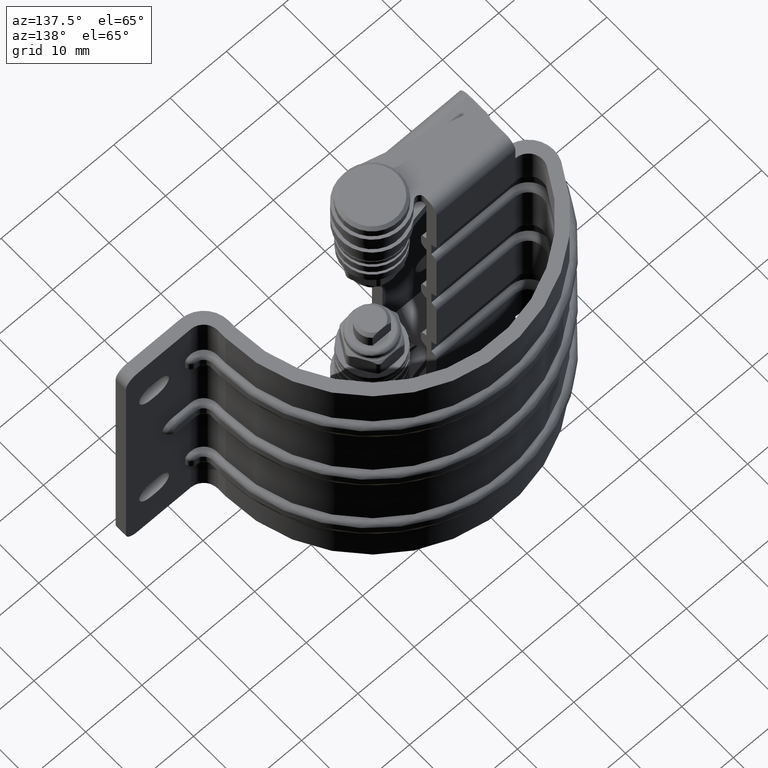
[diagram: clean part render]
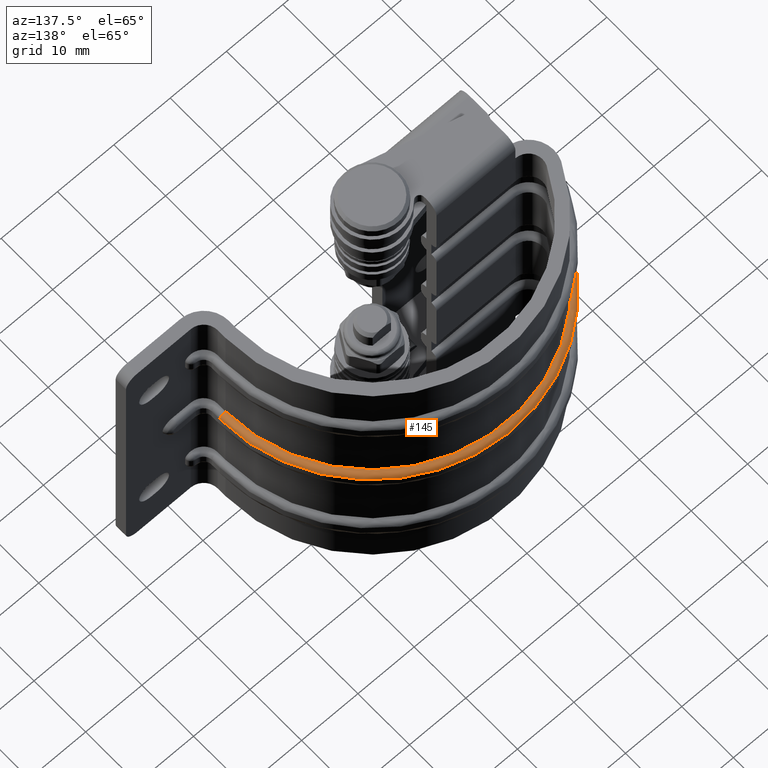
[diagram: same view with one face highlighted and labeled with its STEP entity id]
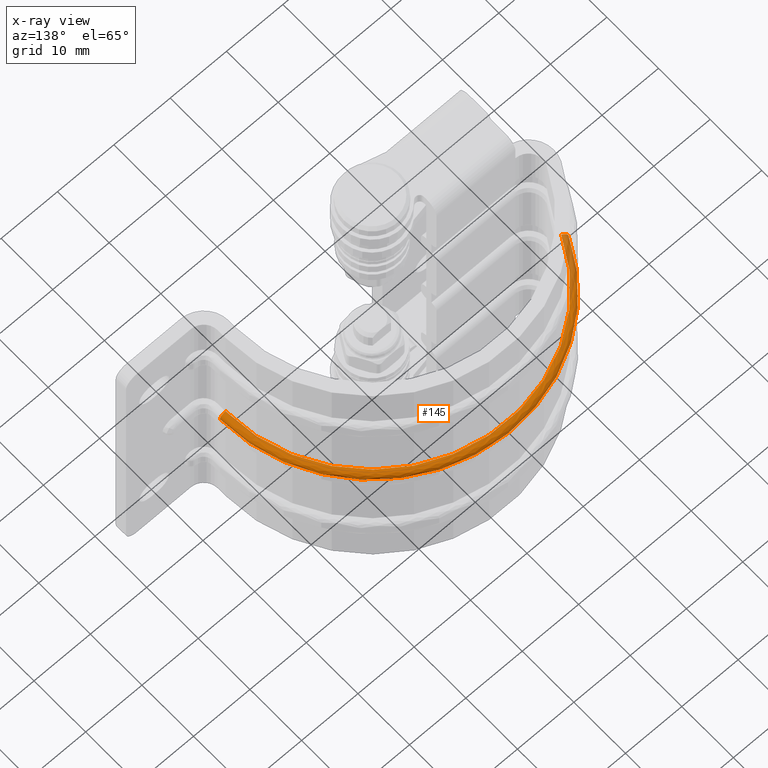
[diagram: x-ray of the same camera — body ghosted, the highlighted face saturated]
A machine part, auxiliary view. The second image highlights one B-rep face of the part: STEP entity #145.
The next image is the same camera in x-ray: the body ghosted, the highlighted face saturated — about 8% of this face is hidden behind the body in this view.
In plain terms, the highlighted face is a freeform B-spline surface patch.
Its self-contained STEP definition (entity closure, byte-faithful):
#145=ADVANCED_FACE('',(#869),#868,.T.);
#868=( BOUNDED_SURFACE() B_SPLINE_SURFACE( 2,2,((#5303,#5304,#5305,#5306,#5307),(#5308,#5309,#5310,#5311,#5312),(#5313,#5314,#5315,#5316,#5317),(#5318,#5319,#5320,#5321,#5322),(#5323,#5324,#5325,#5326,#5327),(#5328,#5329,#5330,#5331,#5332),(#5333,#5334,#5335,#5336,#5337)), .UNSPECIFIED.,.T.,.F.,.F.) B_SPLINE_SURFACE_WITH_KNOTS((3,2,2,3),(3,2,3),(0.00000000000E+00,3.33333333333E-01,6.66666666667E-01,1.00000000000E+00),(0.00000000000E+00,5.00000000000E-01,1.00000000000E+00), .UNSPECIFIED. ) GEOMETRIC_REPRESENTATION_ITEM() RATIONAL_B_SPLINE_SURFACE(((1.00000000000E+00,7.07106781187E-01,1.00000000000E+00,7.07106781187E-01,1.00000000000E+00),(5.00000000000E-01,3.53553390593E-01,5.00000000000E-01,3.53553390593E-01,5.00000000000E-01),(1.00000000000E+00,7.07106781187E-01,1.00000000000E+00,7.07106781187E-01,1.00000000000E+00),(5.00000000000E-01,3.53553390593E-01,5.00000000000E-01,3.53553390593E-01,5.00000000000E-01),(1.00000000000E+00,7.07106781187E-01,1.00000000000E+00,7.07106781187E-01,1.00000000000E+00),(5.00000000000E-01,3.53553390593E-01,5.00000000000E-01,3.53553390593E-01,5.00000000000E-01),(1.00000000000E+00,7.07106781187E-01,1.00000000000E+00,7.07106781187E-01,1.00000000000E+00))) REPRESENTATION_ITEM('') SURFACE() );
#869=FACE_OUTER_BOUND('',#5338,.T.);
#5303=CARTESIAN_POINT('',(-7.49999999590E-01,3.03484368623E-13,-2.70000000015E+01));
#5304=CARTESIAN_POINT('',(-1.74999999959E+00,3.03484368623E-13,-2.70000000015E+01));
#5305=CARTESIAN_POINT('',(-1.74999999959E+00,3.03606829258E-13,-2.60000000015E+01));
#5306=CARTESIAN_POINT('',(-1.74999999959E+00,3.03729289894E-13,-2.50000000015E+01));
#5307=CARTESIAN_POINT('',(-7.49999999590E-01,3.03729289894E-13,-2.50000000015E+01));
#5308=CARTESIAN_POINT('',(-7.49999999590E-01,-4.67653718051E+01,-2.70000000015E+01));
#5309=CARTESIAN_POINT('',(-1.74999999959E+00,-4.67653718051E+01,-2.70000000015E+01));
#5310=CARTESIAN_POINT('',(-1.74999999959E+00,-4.50333209975E+01,-2.60000000015E+01));
#5311=CARTESIAN_POINT('',(-1.74999999959E+00,-4.33012701899E+01,-2.50000000015E+01));
#5312=CARTESIAN_POINT('',(-7.49999999590E-01,-4.33012701899E+01,-2.50000000015E+01));
#5313=CARTESIAN_POINT('',(-7.49999999590E-01,-2.33826859025E+01,1.34999999991E+01));
#5314=CARTESIAN_POINT('',(-1.74999999959E+00,-2.33826859025E+01,1.34999999991E+01));
#5315=CARTESIAN_POINT('',(-1.74999999959E+00,-2.25166604987E+01,1.29999999991E+01));
#5316=CARTESIAN_POINT('',(-1.74999999959E+00,-2.16506350950E+01,1.24999999991E+01));
#5317=CARTESIAN_POINT('',(-7.49999999590E-01,-2.16506350950E+01,1.24999999991E+01));
#5318=CARTESIAN_POINT('',(-7.49999999590E-01,3.06790805778E-13,5.39999999997E+01));
#5319=CARTESIAN_POINT('',(-1.74999999959E+00,3.06790805778E-13,5.39999999997E+01));
#5320=CARTESIAN_POINT('',(-1.74999999959E+00,3.06790805778E-13,5.19999999997E+01));
#5321=CARTESIAN_POINT('',(-1.74999999959E+00,3.06790805778E-13,4.99999999997E+01));
#5322=CARTESIAN_POINT('',(-7.49999999590E-01,3.06790805778E-13,4.99999999997E+01));
#5323=CARTESIAN_POINT('',(-7.49999999590E-01,2.33826859025E+01,1.34999999991E+01));
#5324=CARTESIAN_POINT('',(-1.74999999959E+00,2.33826859025E+01,1.34999999991E+01));
#5325=CARTESIAN_POINT('',(-1.74999999959E+00,2.25166604987E+01,1.29999999991E+01));
#5326=CARTESIAN_POINT('',(-1.74999999959E+00,2.16506350950E+01,1.24999999991E+01));
#5327=CARTESIAN_POINT('',(-7.49999999590E-01,2.16506350950E+01,1.24999999991E+01));
#5328=CARTESIAN_POINT('',(-7.49999999590E-01,4.67653718051E+01,-2.70000000015E+01));
#5329=CARTESIAN_POINT('',(-1.74999999959E+00,4.67653718051E+01,-2.70000000015E+01));
#5330=CARTESIAN_POINT('',(-1.74999999959E+00,4.50333209975E+01,-2.60000000015E+01));
#5331=CARTESIAN_POINT('',(-1.74999999959E+00,4.33012701899E+01,-2.50000000015E+01));
#5332=CARTESIAN_POINT('',(-7.49999999590E-01,4.33012701899E+01,-2.50000000015E+01));
#5333=CARTESIAN_POINT('',(-7.49999999590E-01,3.10097242933E-13,-2.70000000015E+01));
#5334=CARTESIAN_POINT('',(-1.74999999959E+00,3.10097242933E-13,-2.70000000015E+01));
#5335=CARTESIAN_POINT('',(-1.74999999959E+00,3.09974782298E-13,-2.60000000015E+01));
#5336=CARTESIAN_POINT('',(-1.74999999959E+00,3.09852321663E-13,-2.50000000015E+01));
#5337=CARTESIAN_POINT('',(-7.49999999590E-01,3.09852321663E-13,-2.50000000015E+01));
#5338=EDGE_LOOP('',(#9038,#9039,#9040,#9041));
#9038=ORIENTED_EDGE('',*,*,#11043,.T.);
#9039=ORIENTED_EDGE('',*,*,#11044,.F.);
#9040=ORIENTED_EDGE('',*,*,#11040,.F.);
#9041=ORIENTED_EDGE('',*,*,#11045,.F.);
#11040=EDGE_CURVE('',#12680,#12681,#12682,.T.);
#11043=EDGE_CURVE('',#12700,#12701,#12702,.T.);
#11044=EDGE_CURVE('',#12681,#12701,#12708,.T.);
#11045=EDGE_CURVE('',#12700,#12680,#12714,.T.);
#12680=VERTEX_POINT('',#19190);
#12681=VERTEX_POINT('',#19191);
#12682=CIRCLE('',#19195,1.00000000000E+00);
#12700=VERTEX_POINT('',#19204);
#12701=VERTEX_POINT('',#19205);
#12702=CIRCLE('',#19209,1.00000000000E+00);
#12708=CIRCLE('',#19213,2.70000000004E+01);
#12714=CIRCLE('',#19217,2.59999999989E+01);
#19190=CARTESIAN_POINT('',(-1.74999999959E+00,-1.08837209322E+01,2.36123835224E+01));
#19191=CARTESIAN_POINT('',(-7.49999999590E-01,-1.13023255815E+01,2.45205513073E+01));
#19192=CARTESIAN_POINT('',(-7.49999999590E-01,-1.08837209304E+01,2.36123827404E+01));
#19193=DIRECTION('',(0.00000000000E+00,9.08168566966E-01,4.18604651162E-01));
#19194=DIRECTION('',(-0.00000000000E+00,4.18604651162E-01,-9.08168566966E-01));
#19195=AXIS2_PLACEMENT_3D('',#19192,#19193,#19194);
#19204=CARTESIAN_POINT('',(-1.74999999959E+00,-2.53968668318E-09,-2.59999992166E+01));
#19205=CARTESIAN_POINT('',(-7.49999999590E-01,3.11750625315E-13,-2.70000000015E+01));
#19206=CARTESIAN_POINT('',(-7.49999999590E-01,3.11750625315E-13,-2.60000000015E+01));
#19207=DIRECTION('',(0.00000000000E+00,-1.00000000000E+00,0.00000000000E+00));
#19208=DIRECTION('',(-0.00000000000E+00,-0.00000000000E+00,1.00000000000E+00));
#19209=AXIS2_PLACEMENT_3D('',#19206,#19207,#19208);
#19210=CARTESIAN_POINT('',(-7.49999999590E-01,3.06790805778E-13,-1.11199582875E-09));
#19211=DIRECTION('',(1.00000000000E+00,0.00000000000E+00,-0.00000000000E+00));
#19212=DIRECTION('',(-0.00000000000E+00,-0.00000000000E+00,-1.00000000000E+00));
#19213=AXIS2_PLACEMENT_3D('',#19210,#19211,#19212);
#19214=CARTESIAN_POINT('',(-1.74999999959E+00,-2.53969145930E-09,7.82319993675E-07));
#19215=DIRECTION('',(-1.00000000000E+00,0.00000000000E+00,0.00000000000E+00));
#19216=DIRECTION('',(-0.00000000000E+00,-0.00000000000E+00,-1.00000000000E+00));
#19217=AXIS2_PLACEMENT_3D('',#19214,#19215,#19216);